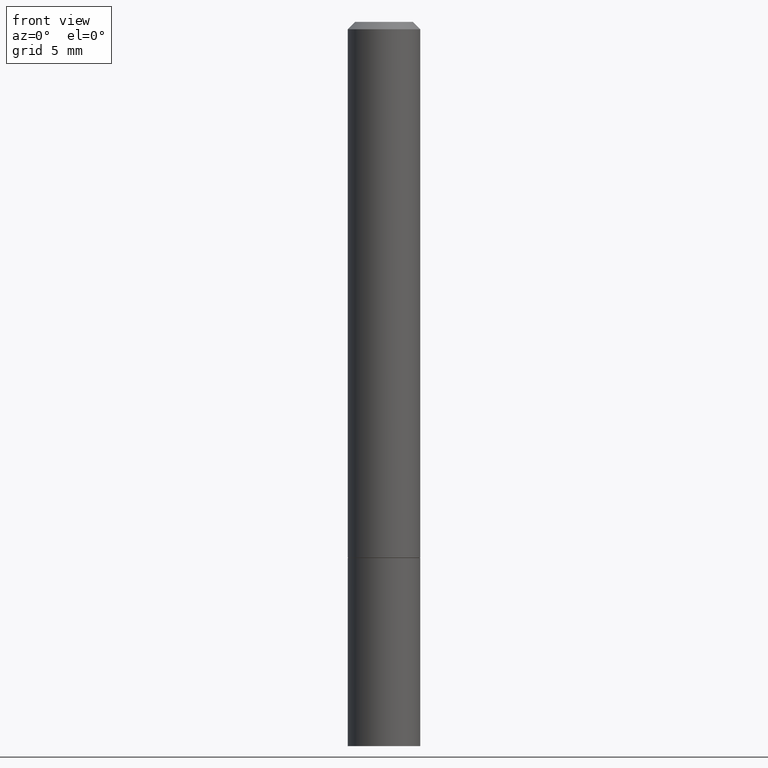
[diagram: clean part render]
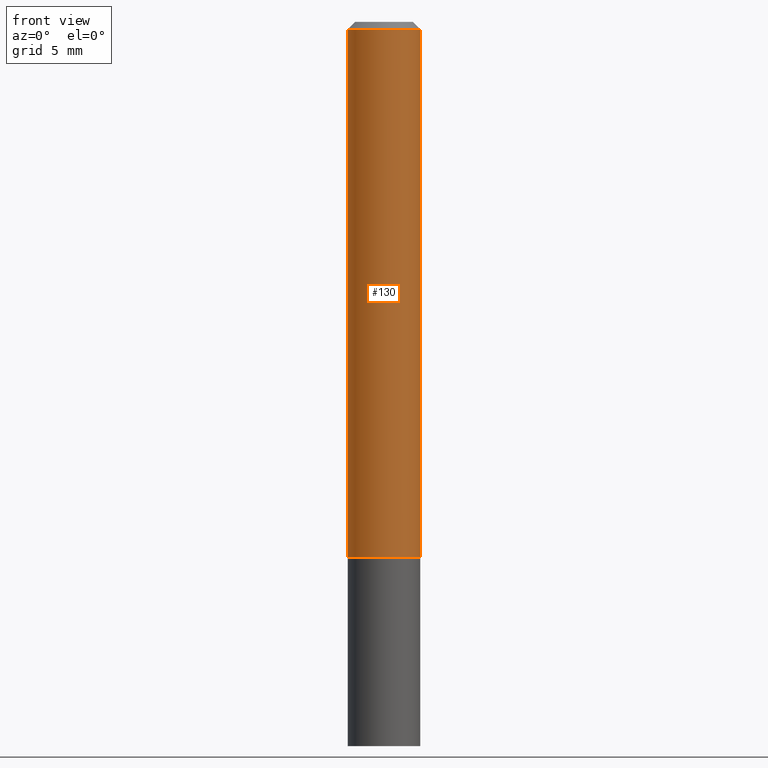
[diagram: same view with one face highlighted and labeled with its STEP entity id]
A machine part, front view. The second image highlights one B-rep face of the part: STEP entity #130.
In plain terms, the highlighted cylindrical surface (edge-blend (fillet) strip) has radius 2.5006 mm, axis along (-0, 0, 1).
Its self-contained STEP definition (entity closure, byte-faithful):
#6 = EDGE_CURVE ( 'NONE', #177, #106, #257, .T. ) ;
#21 = EDGE_CURVE ( 'NONE', #184, #119, #328, .T. ) ;
#38 = DIRECTION ( 'NONE',  ( 1.000000000000000000, -6.982962677686266711E-15, 0.000000000000000000 ) ) ;
#63 = FACE_OUTER_BOUND ( 'NONE', #145, .T. ) ;
#67 = DIRECTION ( 'NONE',  ( -2.445468806185136597E-29, 3.491481338843145583E-15, 1.000000000000000000 ) ) ;
#89 = AXIS2_PLACEMENT_3D ( 'NONE', #211, #67, #38 ) ;
#95 = DIRECTION ( 'NONE',  ( 1.000000000000000000, -6.982962677686266711E-15, 4.876176775795935793E-29 ) ) ;
#105 = VECTOR ( 'NONE', #146, 39.37007874015748143 ) ;
#106 = VERTEX_POINT ( 'NONE', #186 ) ;
#119 = VERTEX_POINT ( 'NONE', #313 ) ;
#124 = DIRECTION ( 'NONE',  ( -2.445468806185136597E-29, 3.491481338843145583E-15, 1.000000000000000000 ) ) ;
#130 = ADVANCED_FACE ( 'NONE', ( #63 ), #171, .T. ) ;
#142 = LINE ( 'NONE', #305, #105 ) ;
#145 = EDGE_LOOP ( 'NONE', ( #202, #250, #180, #213 ) ) ;
#146 = DIRECTION ( 'NONE',  ( -2.445468806185136877E-29, 3.491481338843145188E-15, 1.000000000000000000 ) ) ;
#154 = CARTESIAN_POINT ( 'NONE',  ( -0.09844999999999980156, 6.176430488413486702E-16, -0.02000000000000002470 ) ) ;
#158 = DIRECTION ( 'NONE',  ( -2.445468806185136877E-29, 3.491481338843145188E-15, 1.000000000000000000 ) ) ;
#164 = CARTESIAN_POINT ( 'NONE',  ( 3.559868941163703312E-29, -5.082549384953967438E-15, -1.455699999999999994 ) ) ;
#171 = CYLINDRICAL_SURFACE ( 'NONE', #233, 0.09844999999999991258 ) ;
#177 = VERTEX_POINT ( 'NONE', #206 ) ;
#179 = EDGE_CURVE ( 'NONE', #177, #184, #353, .T. ) ;
#180 = ORIENTED_EDGE ( 'NONE', *, *, #346, .T. ) ;
#184 = VERTEX_POINT ( 'NONE', #154 ) ;
#186 = CARTESIAN_POINT ( 'NONE',  ( 0.09845000000000000973, -5.770022060572179999E-15, -1.455699999999999994 ) ) ;
#202 = ORIENTED_EDGE ( 'NONE', *, *, #179, .F. ) ;
#206 = CARTESIAN_POINT ( 'NONE',  ( -0.09845000000000000973, -1.876660182509593708E-15, -1.455699999999999994 ) ) ;
#211 = CARTESIAN_POINT ( 'NONE',  ( 4.890937612370279289E-31, -6.982962677686299005E-17, -0.02000000000000002470 ) ) ;
#213 = ORIENTED_EDGE ( 'NONE', *, *, #21, .F. ) ;
#233 = AXIS2_PLACEMENT_3D ( 'NONE', #293, #124, #95 ) ;
#245 = CARTESIAN_POINT ( 'NONE',  ( -0.09844999999999991258, 6.995293233558180118E-16, -4.842691596355949838E-30 ) ) ;
#248 = DIRECTION ( 'NONE',  ( 1.000000000000000000, -6.982962677686265133E-15, 0.000000000000000000 ) ) ;
#250 = ORIENTED_EDGE ( 'NONE', *, *, #6, .T. ) ;
#257 = CIRCLE ( 'NONE', #296, 0.09845000000000000973 ) ;
#279 = DIRECTION ( 'NONE',  ( -2.445468806185136597E-29, 3.491481338843145583E-15, 1.000000000000000000 ) ) ;
#290 = VECTOR ( 'NONE', #158, 39.37007874015748143 ) ;
#293 = CARTESIAN_POINT ( 'NONE',  ( 0.000000000000000000, 0.000000000000000000, 0.000000000000000000 ) ) ;
#296 = AXIS2_PLACEMENT_3D ( 'NONE', #164, #279, #248 ) ;
#305 = CARTESIAN_POINT ( 'NONE',  ( 0.09844999999999991258, -6.874726756182123629E-16, 4.800596035771094310E-30 ) ) ;
#313 = CARTESIAN_POINT ( 'NONE',  ( 0.09844999999999980156, -7.452456546574689274E-16, -0.02000000000000002470 ) ) ;
#328 = CIRCLE ( 'NONE', #89, 0.09844999999999980156 ) ;
#346 = EDGE_CURVE ( 'NONE', #106, #119, #142, .T. ) ;
#353 = LINE ( 'NONE', #245, #290 ) ;